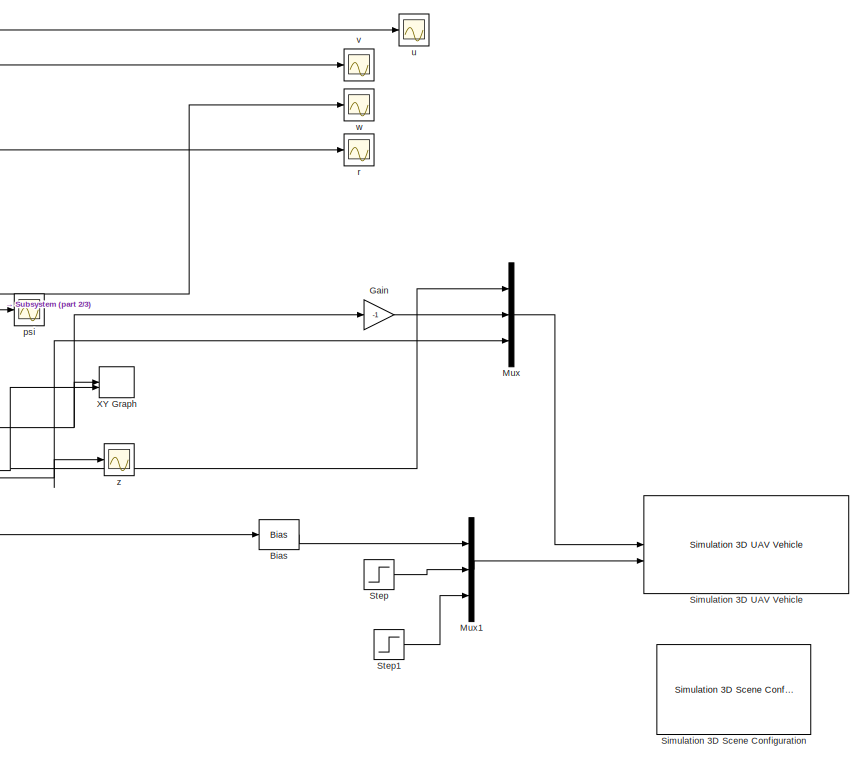
[diagram: root canvas - part 1/3, middle right region]
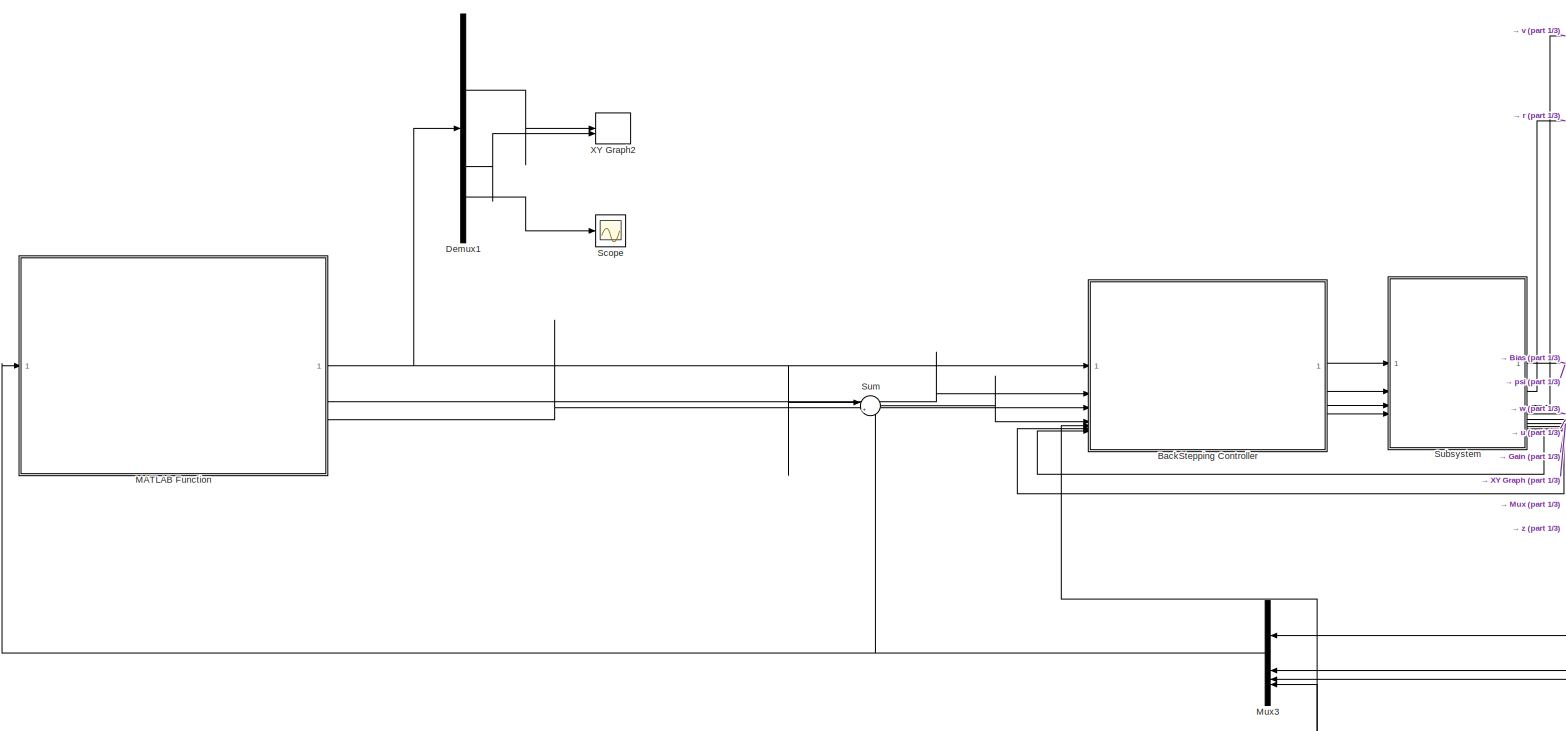
[diagram: root canvas - part 2/3, central region]
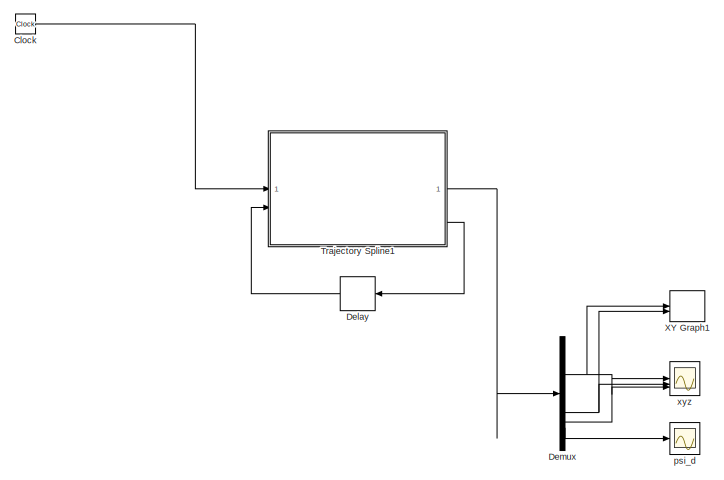
[diagram: root canvas - part 3/3, bottom left region]
MODEL slx_57d184d4e85a
KIND model
CONFIG AbsTol = auto
CONFIG EnableMultiTasking = off
CONFIG FixedStep = auto
CONFIG MaxStep = auto
CONFIG MinStep = auto
CONFIG RelTol = 1e-3
CONFIG SampleTimeConstraint = Unconstrained
CONFIG SolverName = VariableStepAuto
CONFIG StartTime = 0.0
CONFIG StopTime = 150
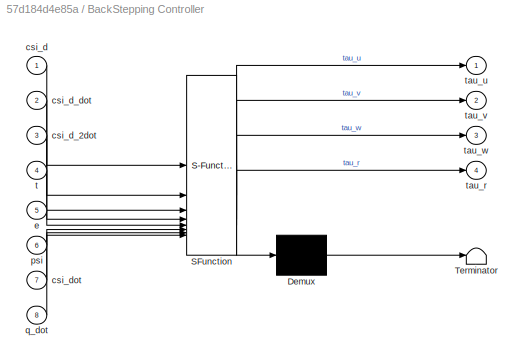
BLOCK [SubSystem] BackStepping Controller
  ErrorFcn = Stateflow.Translate.translate
  LibrarySourceBlock = simulink/User-Defined\nFunctions/MATLAB Function
  PermitHierarchicalResolution = ExplicitOnly
  SFBlockType = MATLAB Function
  TreatAsAtomicUnit = on
BLOCK [Demux] BackStepping Controller/ Demux 
  Outputs = 1
BLOCK [S-Function] BackStepping Controller/ SFunction 
  EnableBusSupport = on
  FunctionName = sf_sfun
  PortCounts = [8 5]
  SFcnIsStateOwnerBlock = off
  SFunctionDeploymentMode = off
  Tag = Stateflow S-Function 1
BLOCK [Terminator] BackStepping Controller/ Terminator 
BLOCK [Inport] BackStepping Controller/csi_d
BLOCK [Inport] BackStepping Controller/csi_d_2dot
  Port = 3
BLOCK [Inport] BackStepping Controller/csi_d_dot
  Port = 2
BLOCK [Inport] BackStepping Controller/csi_dot
  Port = 7
BLOCK [Inport] BackStepping Controller/e
  Port = 5
BLOCK [Inport] BackStepping Controller/psi
  Port = 6
BLOCK [Inport] BackStepping Controller/q_dot
  Port = 8
BLOCK [Inport] BackStepping Controller/t
  Port = 4
BLOCK [Outport] BackStepping Controller/tau_r
  Port = 4
BLOCK [Outport] BackStepping Controller/tau_u
BLOCK [Outport] BackStepping Controller/tau_v
  Port = 2
BLOCK [Outport] BackStepping Controller/tau_w
  Port = 3
BLOCK [Bias] Bias
  Bias = -pi/2
  SaturateOnIntegerOverflow = off
BLOCK [Clock] Clock
  Commented = on
BLOCK [Delay] Delay
  Commented = on
  DelayLength = 1
  InitialCondition = 0
  InputPortMap = u0
  NameLocation = top
BLOCK [Demux] Demux
  Commented = on
BLOCK [Demux] Demux1
BLOCK [Gain] Gain
  Gain = -1
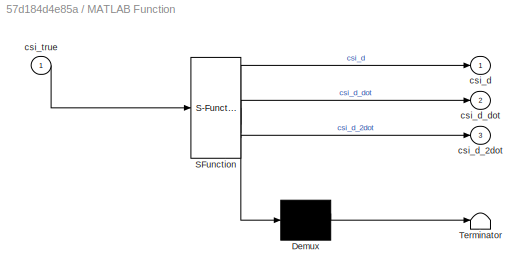
BLOCK [SubSystem] MATLAB Function
  ErrorFcn = Stateflow.Translate.translate
  LibrarySourceBlock = simulink/User-Defined\nFunctions/MATLAB Function
  PermitHierarchicalResolution = ExplicitOnly
  SFBlockType = MATLAB Function
  TreatAsAtomicUnit = on
BLOCK [Demux] MATLAB Function/ Demux 
  Outputs = 1
BLOCK [S-Function] MATLAB Function/ SFunction 
  EnableBusSupport = on
  FunctionName = sf_sfun
  PortCounts = [1 4]
  SFcnIsStateOwnerBlock = off
  SFunctionDeploymentMode = off
  Tag = Stateflow S-Function 3
BLOCK [Terminator] MATLAB Function/ Terminator 
BLOCK [Outport] MATLAB Function/csi_d
BLOCK [Outport] MATLAB Function/csi_d_2dot
  Port = 3
BLOCK [Outport] MATLAB Function/csi_d_dot
  Port = 2
BLOCK [Inport] MATLAB Function/csi_true
BLOCK [Mux] Mux
  DisplayOption = bar
  Inputs = 3
BLOCK [Mux] Mux1
  DisplayOption = bar
  Inputs = 3
BLOCK [Mux] Mux3
  DisplayOption = bar
  NameLocation = top
BLOCK [Scope] Scope
  Floating = off
  NumInputPorts = 1
  ScopeSpecificationString = Simulink.scopes.TimeScopeBlockCfg('CurrentConfiguration', extmgr.ConfigurationSet(extmgr.Configuration('Core','General UI',true),extmgr.Configuration('Core','Source UI',true),extmgr.Configuration('Sources','WiredSimulink',true,'DataLoggingVariableName','ScopeData1'),extmgr.Configuration('Visuals','Time Domain',true,'SerializedDisplays',{struct('MinYLimReal','-3.91217','MaxYLimReal','3.92191','YLab...<+1397ch>
BLOCK [Reference] Simulation 3D Scene Configuration  REF=sim3dlib/Simulation 3D Scene Configuration
  LibrarySourceBlock = aerolibsim3d/Simulation 3D Scene Configuration
  Priority = 0
  SourceBlock = sim3dlib/Simulation 3D Scene Configuration
  SourceType = Simulation 3D Scene Configuration
BLOCK [Reference] Simulation 3D UAV Vehicle  REF=uavsim3dlib/Simulation 3D UAV Vehicle
  Priority = -1
  SourceBlock = uavsim3dlib/Simulation 3D UAV Vehicle
  SourceType = Simulation 3D UAV Vehicle
BLOCK [Step] Step
  After = 0
  SampleTime = 0
BLOCK [Step] Step1
  After = 0
  SampleTime = 0
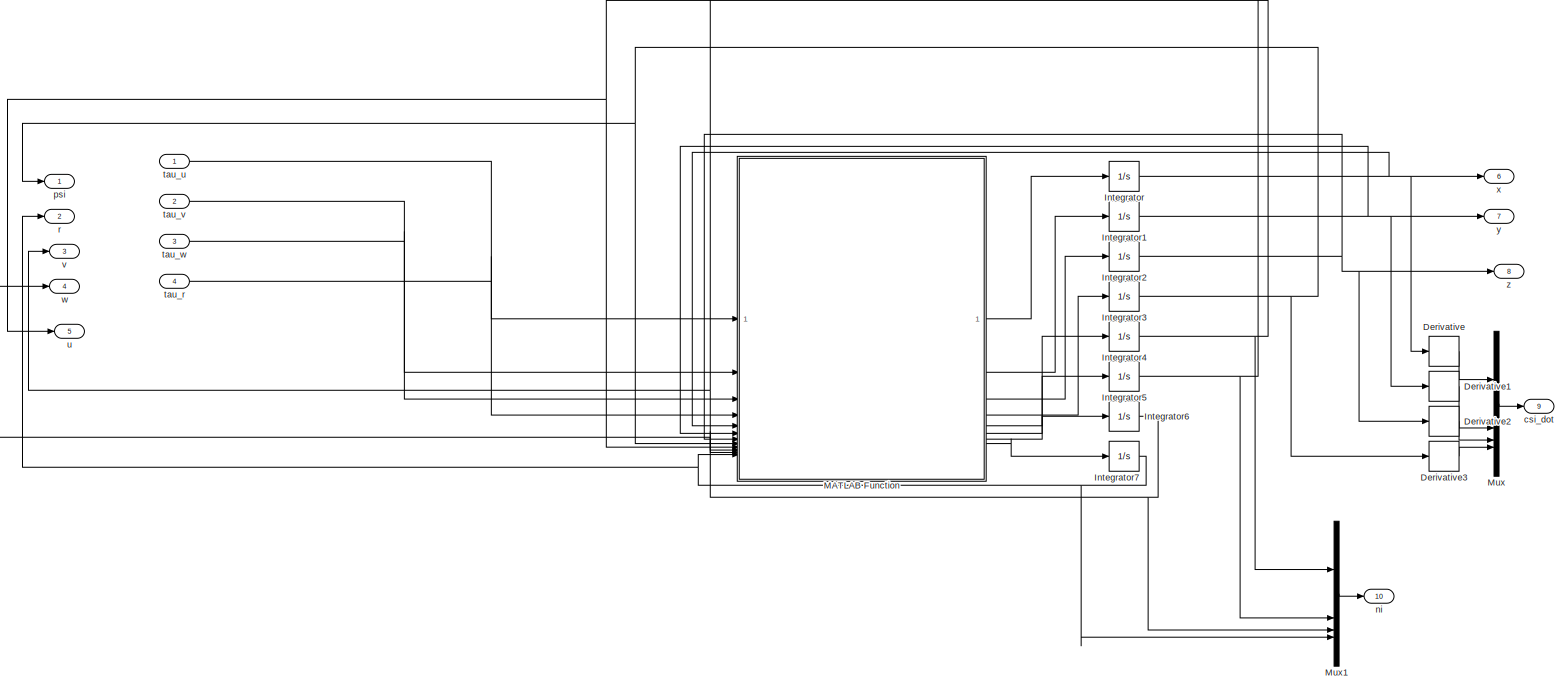
[diagram: Subsystem - part 1/1, most of the canvas]
BLOCK [SubSystem] Subsystem
BLOCK [Derivative] Subsystem/Derivative
  CoefficientInTFapproximation = 0.01
BLOCK [Derivative] Subsystem/Derivative1
  CoefficientInTFapproximation = 0.01
BLOCK [Derivative] Subsystem/Derivative2
  CoefficientInTFapproximation = 0.01
BLOCK [Derivative] Subsystem/Derivative3
  CoefficientInTFapproximation = 0.01
BLOCK [Integrator] Subsystem/Integrator
BLOCK [Integrator] Subsystem/Integrator1
BLOCK [Integrator] Subsystem/Integrator2
BLOCK [Integrator] Subsystem/Integrator3
BLOCK [Integrator] Subsystem/Integrator4
BLOCK [Integrator] Subsystem/Integrator5
BLOCK [Integrator] Subsystem/Integrator6
BLOCK [Integrator] Subsystem/Integrator7
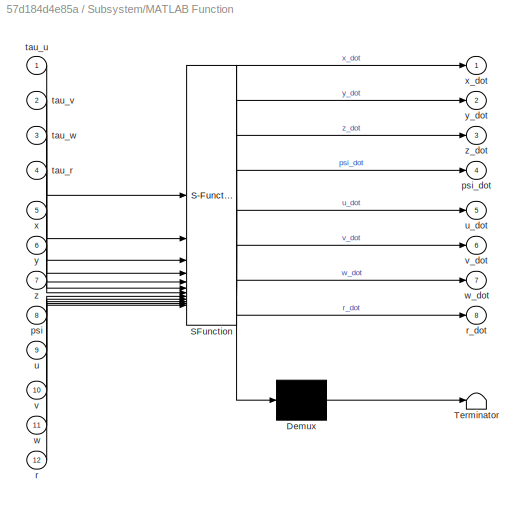
BLOCK [SubSystem] Subsystem/MATLAB Function
  ErrorFcn = Stateflow.Translate.translate
  LibrarySourceBlock = simulink/User-Defined\nFunctions/MATLAB Function
  PermitHierarchicalResolution = ExplicitOnly
  SFBlockType = MATLAB Function
  TreatAsAtomicUnit = on
BLOCK [Demux] Subsystem/MATLAB Function/ Demux 
  Outputs = 1
BLOCK [S-Function] Subsystem/MATLAB Function/ SFunction 
  EnableBusSupport = on
  FunctionName = sf_sfun
  PortCounts = [12 9]
  SFcnIsStateOwnerBlock = off
  SFunctionDeploymentMode = off
  Tag = Stateflow S-Function 2
BLOCK [Terminator] Subsystem/MATLAB Function/ Terminator 
BLOCK [Inport] Subsystem/MATLAB Function/psi
  Port = 8
BLOCK [Outport] Subsystem/MATLAB Function/psi_dot
  Port = 4
BLOCK [Inport] Subsystem/MATLAB Function/r
  Port = 12
BLOCK [Outport] Subsystem/MATLAB Function/r_dot
  Port = 8
BLOCK [Inport] Subsystem/MATLAB Function/tau_r
  Port = 4
BLOCK [Inport] Subsystem/MATLAB Function/tau_u
BLOCK [Inport] Subsystem/MATLAB Function/tau_v
  Port = 2
BLOCK [Inport] Subsystem/MATLAB Function/tau_w
  Port = 3
BLOCK [Inport] Subsystem/MATLAB Function/u
  Port = 9
BLOCK [Outport] Subsystem/MATLAB Function/u_dot
  Port = 5
BLOCK [Inport] Subsystem/MATLAB Function/v
  Port = 10
BLOCK [Outport] Subsystem/MATLAB Function/v_dot
  Port = 6
BLOCK [Inport] Subsystem/MATLAB Function/w
  Port = 11
BLOCK [Outport] Subsystem/MATLAB Function/w_dot
  Port = 7
BLOCK [Inport] Subsystem/MATLAB Function/x
  Port = 5
BLOCK [Outport] Subsystem/MATLAB Function/x_dot
BLOCK [Inport] Subsystem/MATLAB Function/y
  Port = 6
BLOCK [Outport] Subsystem/MATLAB Function/y_dot
  Port = 2
BLOCK [Inport] Subsystem/MATLAB Function/z
  Port = 7
BLOCK [Outport] Subsystem/MATLAB Function/z_dot
  Port = 3
BLOCK [Mux] Subsystem/Mux
  DisplayOption = bar
BLOCK [Mux] Subsystem/Mux1
  DisplayOption = bar
BLOCK [Outport] Subsystem/csi_dot
  Port = 9
BLOCK [Outport] Subsystem/ni
  Port = 10
BLOCK [Outport] Subsystem/psi
BLOCK [Outport] Subsystem/r
  Port = 2
BLOCK [Inport] Subsystem/tau_r
  Port = 4
BLOCK [Inport] Subsystem/tau_u
BLOCK [Inport] Subsystem/tau_v
  Port = 2
BLOCK [Inport] Subsystem/tau_w
  Port = 3
BLOCK [Outport] Subsystem/u
  Port = 5
BLOCK [Outport] Subsystem/v
  Port = 3
BLOCK [Outport] Subsystem/w
  Port = 4
BLOCK [Outport] Subsystem/x
  Port = 6
BLOCK [Outport] Subsystem/y
  Port = 7
BLOCK [Outport] Subsystem/z
  Port = 8
BLOCK [Sum] Sum
  Inputs = |+-
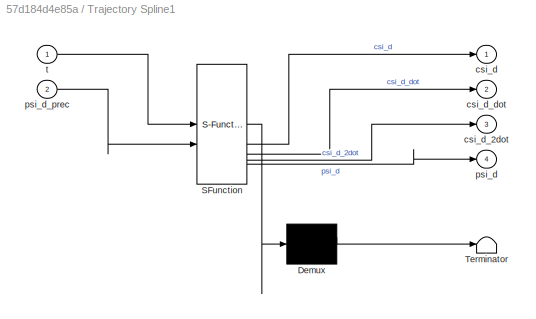
BLOCK [SubSystem] Trajectory Spline1
  Commented = on
  ErrorFcn = Stateflow.Translate.translate
  LibrarySourceBlock = simulink/User-Defined\nFunctions/MATLAB Function
  PermitHierarchicalResolution = ExplicitOnly
  SFBlockType = MATLAB Function
  TreatAsAtomicUnit = on
BLOCK [Demux] Trajectory Spline1/ Demux 
  Outputs = 1
BLOCK [S-Function] Trajectory Spline1/ SFunction 
  EnableBusSupport = on
  FunctionName = sf_sfun
  PortCounts = [2 5]
  SFcnIsStateOwnerBlock = off
  SFunctionDeploymentMode = off
  Tag = Stateflow S-Function 5
BLOCK [Terminator] Trajectory Spline1/ Terminator 
BLOCK [Outport] Trajectory Spline1/csi_d
BLOCK [Outport] Trajectory Spline1/csi_d_2dot
  Port = 3
BLOCK [Outport] Trajectory Spline1/csi_d_dot
  Port = 2
BLOCK [Outport] Trajectory Spline1/psi_d
  Port = 4
BLOCK [Inport] Trajectory Spline1/psi_d_prec
  Port = 2
BLOCK [Inport] Trajectory Spline1/t
BLOCK [Record] XY Graph
  CompatibilityTag = XY
  FileSettingsInternal = {"entries":[{"content":{"excelSettings":{"content":{},"type":"Streamout.ExcelSettings"}},"type":"Streamout.FileSettingStorage","uuid":""}],"packageUris":["http:\/\/schema.mathworks.com\/mf0\/streamout_blocks\/R2020a"],"version":"1.0"}  <repeated x3 — deduplicated; at blocks: XY Graph, XY Graph1, XY Graph2>
  Layout = [1 1]
  SignalsInternal = {"entries":[{"content":{"signals":[{"content":{"blockPath":[],"channel":[],"dimensions":[1,1],"domain":"","lineColor":"#a2142f","plots":[1],"port":1,"sid":[],"signalID":9378,"signalName":"Subsystem:6"},"type":"RecordBlkView.Signal","uuid":""},{"content":{"blockPath":[],"channel":[],"dimensions":[1,1],"domain":"","lineColor":"#139fff","plots":[1],"port":2,"sid":[],"signalID":9381,"signalName":"Subs...<+196ch>
  VisualizationBindings = {"xyplotplugin":{"info":[{"series":[{"bindingParametersList":[{"parameter":"X-Axis","signalID":9378,"signalName":"Subsystem:6"},{"parameter":"Y-Axis","signalID":9381,"signalName":"Subsystem:7"}],"seriesID":26505}],"subplotID":1}]}}
BLOCK [Record] XY Graph1
  Commented = on
  CompatibilityTag = XY
  Layout = [1 1]
  SignalsInternal = {"entries":[{"content":{"signals":[{"content":{"blockPath":[],"channel":[],"dimensions":[1,1],"domain":"","lineColor":"#a2142f","plots":[1],"port":1,"sid":[],"signalID":9362,"signalName":"Demux:1"},"type":"RecordBlkView.Signal","uuid":""},{"content":{"blockPath":[],"channel":[],"dimensions":[1,1],"domain":"","lineColor":"#139fff","plots":[1],"port":2,"sid":[],"signalID":9365,"signalName":"Demux:2"...<+188ch>
  VisualizationBindings = {"xyplotplugin":{"info":[{"series":[{"bindingParametersList":[{"parameter":"X-Axis","signalID":9362,"signalName":"Demux:1"},{"parameter":"Y-Axis","signalID":9365,"signalName":"Demux:2"}],"seriesID":48808}],"subplotID":1}]}}
BLOCK [Record] XY Graph2
  CompatibilityTag = XY
  Layout = [1 1]
  SignalsInternal = {"entries":[{"content":{"signals":[{"content":{"blockPath":[],"channel":[],"dimensions":[1,1],"domain":"","lineColor":"#a2142f","plots":[1],"port":1,"sid":[],"signalID":9370,"signalName":"Demux1:1"},"type":"RecordBlkView.Signal","uuid":""},{"content":{"blockPath":[],"channel":[],"dimensions":[1,1],"domain":"","lineColor":"#139fff","plots":[1],"port":2,"sid":[],"signalID":9373,"signalName":"Demux1:...<+190ch>
  VisualizationBindings = {"xyplotplugin":{"info":[{"series":[{"bindingParametersList":[{"parameter":"X-Axis","signalID":9370,"signalName":"Demux1:1"},{"parameter":"Y-Axis","signalID":9373,"signalName":"Demux1:2"}],"seriesID":53717}],"subplotID":1}]}}
BLOCK [Scope] psi
  Floating = off
  NameLocation = right
  NumInputPorts = 1
  ScopeSpecificationString = Simulink.scopes.TimeScopeBlockCfg('CurrentConfiguration', extmgr.ConfigurationSet(extmgr.Configuration('Core','General UI',true),extmgr.Configuration('Core','Source UI',true),extmgr.Configuration('Sources','WiredSimulink',true,'DataLoggingVariableName','ScopeData1'),extmgr.Configuration('Visuals','Time Domain',true,'SerializedDisplays',{struct('MinYLimReal','-3.81599','MaxYLimReal','3.84706','YLab...<+1401ch>
BLOCK [Scope] psi_d
  Commented = on
  Floating = off
  NameLocation = right
  NumInputPorts = 1
  ScopeSpecificationString = Simulink.scopes.TimeScopeBlockCfg('CurrentConfiguration', extmgr.ConfigurationSet(extmgr.Configuration('Core','General UI',true),extmgr.Configuration('Core','Source UI',true),extmgr.Configuration('Sources','WiredSimulink',true,'DataLoggingVariableName','ScopeData6'),extmgr.Configuration('Visuals','Time Domain',true,'SerializedDisplays',{struct('MinYLimReal','-1.22849','MaxYLimReal','1.22849','YLab...<+1397ch>
BLOCK [Scope] r
  Floating = off
  NameLocation = right
  NumInputPorts = 1
  ScopeSpecificationString = Simulink.scopes.TimeScopeBlockCfg('CurrentConfiguration', extmgr.ConfigurationSet(extmgr.Configuration('Core','General UI',true),extmgr.Configuration('Core','Source UI',true),extmgr.Configuration('Sources','WiredSimulink',true,'DataLoggingVariableName','ScopeData9'),extmgr.Configuration('Visuals','Time Domain',true,'SerializedDisplays',{struct('MinYLimReal','-7.46607','MaxYLimReal','2.64968','YLab...<+1401ch>
BLOCK [Scope] u
  Floating = off
  NumInputPorts = 1
  ScopeSpecificationString = Simulink.scopes.TimeScopeBlockCfg('CurrentConfiguration', extmgr.ConfigurationSet(extmgr.Configuration('Core','General UI',true),extmgr.Configuration('Core','Source UI',true),extmgr.Configuration('Sources','WiredSimulink',true,'DataLoggingVariableName','ScopeData10'),extmgr.Configuration('Visuals','Time Domain',true,'SerializedDisplays',{struct('MinYLimReal','-0.61354','MaxYLimReal','0.68928','YLa...<+1439ch>
BLOCK [Scope] v
  Floating = off
  NameLocation = right
  NumInputPorts = 1
  ScopeSpecificationString = Simulink.scopes.TimeScopeBlockCfg('CurrentConfiguration', extmgr.ConfigurationSet(extmgr.Configuration('Core','General UI',true),extmgr.Configuration('Core','Source UI',true),extmgr.Configuration('Sources','WiredSimulink',true,'DataLoggingVariableName','ScopeData7'),extmgr.Configuration('Visuals','Time Domain',true,'SerializedDisplays',{struct('MinYLimReal','-0.8355','MaxYLimReal','0.42134','YLabe...<+1397ch>
BLOCK [Scope] w
  Floating = off
  NameLocation = right
  NumInputPorts = 1
  ScopeSpecificationString = Simulink.scopes.TimeScopeBlockCfg('CurrentConfiguration', extmgr.ConfigurationSet(extmgr.Configuration('Core','General UI',true),extmgr.Configuration('Core','Source UI',true),extmgr.Configuration('Sources','WiredSimulink',true,'DataLoggingVariableName','ScopeData8'),extmgr.Configuration('Visuals','Time Domain',true,'SerializedDisplays',{struct('MinYLimReal','-1.00000','MaxYLimReal','1.00000','YLab...<+1401ch>
BLOCK [Scope] xyz
  Commented = on
  Floating = off
  NumInputPorts = 3
  ScopeSpecificationString = Simulink.scopes.TimeScopeBlockCfg('CurrentConfiguration', extmgr.ConfigurationSet(extmgr.Configuration('Core','General UI',true),extmgr.Configuration('Core','Source UI',true),extmgr.Configuration('Sources','WiredSimulink',true,'DataLoggingVariableName','ScopeData1'),extmgr.Configuration('Visuals','Time Domain',true,'SerializedDisplays',{struct('MinYLimReal','-2.5','MaxYLimReal','22.5','YLabelReal'...<+2724ch>
BLOCK [Scope] z
  Floating = off
  NameLocation = right
  NumInputPorts = 1
  ScopeSpecificationString = Simulink.scopes.TimeScopeBlockCfg('CurrentConfiguration', extmgr.ConfigurationSet(extmgr.Configuration('Core','General UI',true),extmgr.Configuration('Core','Source UI',true),extmgr.Configuration('Sources','WiredSimulink',true),extmgr.Configuration('Visuals','Time Domain',true,'SerializedDisplays',{struct('MinYLimReal','-0.28045','MaxYLimReal','2.52406','YLabelReal','','MinYLimMag','0.00000','MaxY...<+1379ch>
LINE BackStepping Controller:1 -> Subsystem:1
LINE BackStepping Controller:2 -> Subsystem:2
LINE BackStepping Controller:3 -> Subsystem:3
LINE BackStepping Controller:4 -> Subsystem:4
LINE Bias:1 -> Mux1:1
LINE Clock:1 -> Trajectory Spline1:1
LINE Delay:1 -> Trajectory Spline1:2
LINE Demux1:1 -> XY Graph2:1
LINE Demux1:2 -> XY Graph2:2
LINE Demux1:4 -> Scope:1
NET Demux:1 -> XY Graph1:1, xyz:1
NET Demux:2 -> XY Graph1:2, xyz:2
LINE Demux:3 -> xyz:3
LINE Demux:4 -> psi_d:1
LINE Gain:1 -> Mux:2
NET MATLAB Function:1 -> BackStepping Controller:1, Demux1:1, Sum:1
LINE MATLAB Function:2 -> BackStepping Controller:2
LINE MATLAB Function:3 -> BackStepping Controller:3
LINE Mux1:1 -> Simulation 3D UAV Vehicle:2
NET Mux3:1 -> MATLAB Function:1, Sum:2
LINE Mux:1 -> Simulation 3D UAV Vehicle:1
LINE Step1:1 -> Mux1:3
LINE Step:1 -> Mux1:2
LINE Subsystem/Derivative1:1 -> Subsystem/Mux:2
LINE Subsystem/Derivative2:1 -> Subsystem/Mux:3
LINE Subsystem/Derivative3:1 -> Subsystem/Mux:4
LINE Subsystem/Derivative:1 -> Subsystem/Mux:1
NET Subsystem/Integrator1:1 -> Subsystem/Derivative1:1, Subsystem/MATLAB Function:6, Subsystem/y:1
NET Subsystem/Integrator2:1 -> Subsystem/Derivative2:1, Subsystem/MATLAB Function:7, Subsystem/z:1
NET Subsystem/Integrator3:1 -> Subsystem/Derivative3:1, Subsystem/MATLAB Function:8, Subsystem/psi:1
NET Subsystem/Integrator4:1 -> Subsystem/MATLAB Function:9, Subsystem/Mux1:1, Subsystem/u:1
NET Subsystem/Integrator5:1 -> Subsystem/MATLAB Function:10, Subsystem/Mux1:2, Subsystem/v:1
NET Subsystem/Integrator6:1 -> Subsystem/MATLAB Function:11, Subsystem/Mux1:3, Subsystem/w:1
NET Subsystem/Integrator7:1 -> Subsystem/MATLAB Function:12, Subsystem/Mux1:4, Subsystem/r:1
NET Subsystem/Integrator:1 -> Subsystem/Derivative:1, Subsystem/MATLAB Function:5, Subsystem/x:1
LINE Subsystem/MATLAB Function:1 -> Subsystem/Integrator:1
LINE Subsystem/MATLAB Function:2 -> Subsystem/Integrator1:1
LINE Subsystem/MATLAB Function:3 -> Subsystem/Integrator2:1
LINE Subsystem/MATLAB Function:4 -> Subsystem/Integrator3:1
LINE Subsystem/MATLAB Function:5 -> Subsystem/Integrator4:1
LINE Subsystem/MATLAB Function:6 -> Subsystem/Integrator5:1
LINE Subsystem/MATLAB Function:7 -> Subsystem/Integrator6:1
LINE Subsystem/MATLAB Function:8 -> Subsystem/Integrator7:1
LINE Subsystem/Mux1:1 -> Subsystem/ni:1
LINE Subsystem/Mux:1 -> Subsystem/csi_dot:1
LINE Subsystem/tau_r:1 -> Subsystem/MATLAB Function:4
LINE Subsystem/tau_u:1 -> Subsystem/MATLAB Function:1
LINE Subsystem/tau_v:1 -> Subsystem/MATLAB Function:2
LINE Subsystem/tau_w:1 -> Subsystem/MATLAB Function:3
NET Subsystem:1 -> BackStepping Controller:6, Bias:1, Mux3:4, psi:1
LINE Subsystem:10 -> BackStepping Controller:8
LINE Subsystem:2 -> r:1
LINE Subsystem:3 -> v:1
LINE Subsystem:4 -> w:1
LINE Subsystem:5 -> u:1
NET Subsystem:6 -> Gain:1, Mux3:1, XY Graph:1
NET Subsystem:7 -> Mux3:2, Mux:1, XY Graph:2
NET Subsystem:8 -> Mux3:3, Mux:3, z:1
LINE Subsystem:9 -> BackStepping Controller:7
LINE Sum:1 -> BackStepping Controller:5
LINE Trajectory Spline1:1 -> Demux:1
LINE Trajectory Spline1:4 -> Delay:1
note: NET lines group one-source signal fan-out (src -> all destinations, sorted); 1:1 wires keep LINE
CHART BackStepping Controller states=1 transitions=1
  STATE_LABEL 'eML_blk_kernel()'
  STATE_LABEL 'SCRIPT:\nfunction [tau_u,tau_v,tau_w,tau_r] = backstepping(csi_d, csi_d_dot,csi_d_2dot,t,e,psi,csi_dot,q_dot)\n\nJ = [cos(psi) -sin(psi) 0 0;\n     sin(psi) cos(psi) 0 0;\n     0 0 1 0;\n     0 0 0 1];\npsi_d = csi_d(4);\nx_d_dot = csi_d_dot(1);\ny_d_dot = csi_d_dot(2);\nz_d_dot = csi_d_dot(3);\npsi_d_dot = csi_d_dot(4);\n\nx_d_2dot = csi_d_2dot(1);\ny_d_2dot = csi_d_2dot(2);\nz_d_2dot = csi_d_2dot(3);\npsi_2d_do...<+908ch>'
CHART Subsystem/MATLAB Function states=1 transitions=1
  STATE_LABEL 'eML_blk_kernel()'
  STATE_LABEL 'SCRIPT:\nfunction [x_dot,y_dot,z_dot,psi_dot,u_dot,v_dot,w_dot,r_dot] = Dynamics(tau_u,tau_v,tau_w,tau_r,x,y,z,psi,u,v,w,r)\n\nm = 12;\nd = 0.338;\nl = 0.457;\n\nI = 1/12*m*(d^2+l^2);\n\nY_v_dot = 0;\nY_r = 0;\nX_u_dot = 0;\nX_u = 0;\nY_v = 0;\nZ_w = 0;\nN_r = 0;\nN_r_r = 0;\n\n\nM = diag([m m m I]);\nC = [0 0 0 Y_v_dot*v + Y_r*r;\n     0 0 0 -X_u_dot*u;\n     0 0 0 0;\n     -Y_v_dot*v-Y_r*r X_u_dot*u 0 0];\nD = diag([-X...<+394ch>'
CHART MATLAB Function states=1 transitions=1
  STATE_LABEL 'eML_blk_kernel()'
  STATE_LABEL 'SCRIPT:\nfunction [csi_d, csi_d_dot, csi_d_2dot] = TrajectoryTest(csi_true)\n    t_fin = 50;\n    x = [];\n    y = [];\n    z = [];\n    x_true = csi_true(1);\n    y_true = csi_true(2);\n    z_true = csi_true(3);\n    psi = [];\n    for t=0:t_fin/1000:t_fin\n        x = [x,5*cos(t)-5];\n        y = [y,5*sin(t)];\n        z = [z,0];\n        psi = [psi,atan2(5*cos(t),-5*sin(t))];\n    end\n    \n    e = vecnorm([x_...<+308ch>'
CHART Trajectory Spline1 states=1 transitions=1
  STATE_LABEL 'eML_blk_kernel()'
  STATE_LABEL 'SCRIPT:\nfunction [csi_d,csi_d_dot,csi_d_2dot,psi_d] = trajectory(t,psi_d_prec)\n\n% Punti di Interpolazione\nx1 = 0;\ny1 = 0;\nz1 = 0;\nx2 = 10;\ny2 = 10;\nz2 = 10;\nx3 = 20;\ny3 = 0;\nz3 = 20;\nJ_eval = [];\n\n% MINIMIZZAZIONE DEL COSTO\n\ni=[0.1:0.1:100];\nfor h = i\n    J = 2*h + (3*(x1^2 - 4*x1*x2 + 2*x1*x3 + 4*x2^2 - 4*x2*x3 + x3^2 + y1^2 - ...\n    4*y1*y2 + 2*y1*y3 + 4*y2^2 - 4*y2*y3 + y3^2 + z1^2 - 4*z1*z2 +...<+3115ch>'
CHART  states=0 transitions=0
CHART  states=0 transitions=0
CHART  states=0 transitions=0
CHART  states=0 transitions=0
